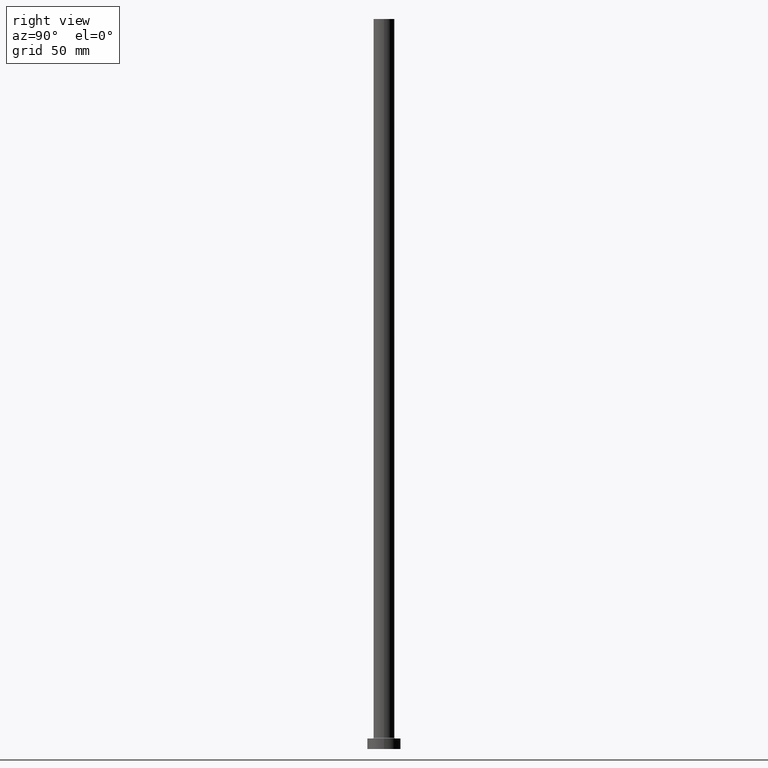
[diagram: clean part render]
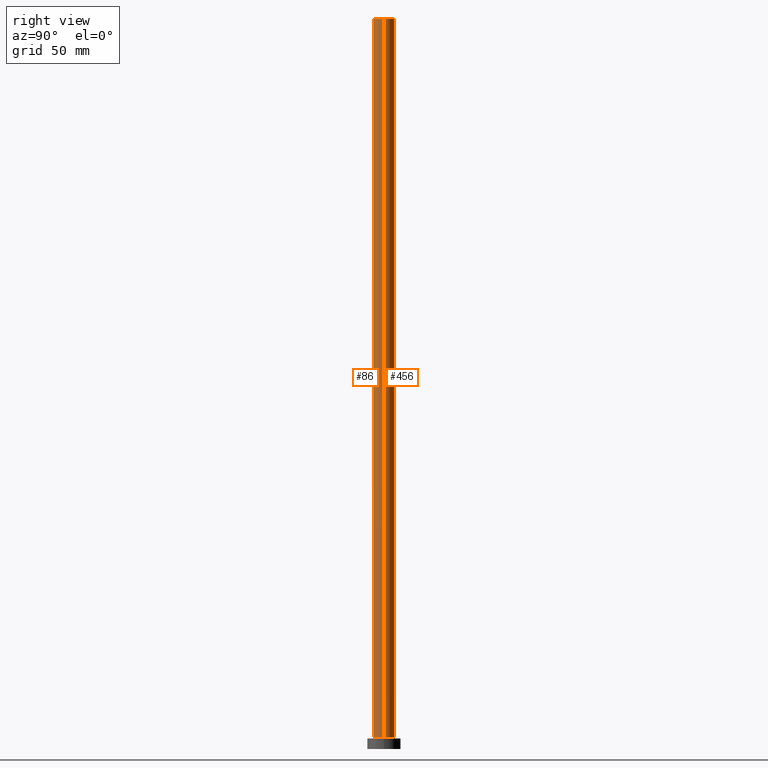
[diagram: same view with one multi-face feature highlighted, each face labeled with its STEP entity id]
A machine part, right view. The highlighted faces form ONE feature: a constant-radius fillet chain: 2 tangent blend faces with common blend radius 5 mm. The faces share edges in the B-rep.
Their STEP definitions:
[1] entity #86 (Cylinder):
#27 = CARTESIAN_POINT ( 'NONE',  ( -5.000000000000000000, 0.000000000000000000, 350.0000000000000000 ) ) ;
#31 = DIRECTION ( 'NONE',  ( 1.000000000000000000, 0.000000000000000000, 0.000000000000000000 ) ) ;
#38 = EDGE_LOOP ( 'NONE', ( #270, #414, #151, #224 ) ) ;
#45 = VERTEX_POINT ( 'NONE', #64 ) ;
#63 = VECTOR ( 'NONE', #243, 1000.000000000000000 ) ;
#64 = CARTESIAN_POINT ( 'NONE',  ( -5.000000000000000000, 0.000000000000000000, 5.500000000000005329 ) ) ;
#71 = AXIS2_PLACEMENT_3D ( 'NONE', #458, #418, #31 ) ;
#73 = CARTESIAN_POINT ( 'NONE',  ( 0.000000000000000000, 0.000000000000000000, 350.0000000000000000 ) ) ;
#82 = VERTEX_POINT ( 'NONE', #209 ) ;
#86 = ADVANCED_FACE ( 'NONE', ( #130 ), #313, .T. ) ;
#95 = LINE ( 'NONE', #27, #63 ) ;
#100 = CIRCLE ( 'NONE', #263, 5.000000000000000000 ) ;
#102 = EDGE_CURVE ( 'NONE', #45, #82, #280, .T. ) ;
#103 = EDGE_CURVE ( 'NONE', #381, #82, #246, .T. ) ;
#120 = EDGE_CURVE ( 'NONE', #262, #45, #95, .T. ) ;
#130 = FACE_OUTER_BOUND ( 'NONE', #38, .T. ) ;
#151 = ORIENTED_EDGE ( 'NONE', *, *, #120, .T. ) ;
#161 = DIRECTION ( 'NONE',  ( -0.000000000000000000, -0.000000000000000000, -1.000000000000000000 ) ) ;
#172 = CARTESIAN_POINT ( 'NONE',  ( 0.000000000000000000, 0.000000000000000000, 350.0000000000000000 ) ) ;
#209 = CARTESIAN_POINT ( 'NONE',  ( 5.000000000000000000, 6.123233995736766282E-16, 5.500000000000005329 ) ) ;
#224 = ORIENTED_EDGE ( 'NONE', *, *, #102, .T. ) ;
#243 = DIRECTION ( 'NONE',  ( -0.000000000000000000, -0.000000000000000000, -1.000000000000000000 ) ) ;
#246 = LINE ( 'NONE', #319, #401 ) ;
#262 = VERTEX_POINT ( 'NONE', #323 ) ;
#263 = AXIS2_PLACEMENT_3D ( 'NONE', #73, #435, #399 ) ;
#270 = ORIENTED_EDGE ( 'NONE', *, *, #103, .F. ) ;
#280 = CIRCLE ( 'NONE', #71, 5.000000000000000000 ) ;
#313 = CYLINDRICAL_SURFACE ( 'NONE', #330, 5.000000000000000000 ) ;
#319 = CARTESIAN_POINT ( 'NONE',  ( 5.000000000000000000, 6.123233995736766282E-16, 350.0000000000000000 ) ) ;
#323 = CARTESIAN_POINT ( 'NONE',  ( -5.000000000000000000, 0.000000000000000000, 350.0000000000000000 ) ) ;
#327 = CARTESIAN_POINT ( 'NONE',  ( 5.000000000000000000, 6.123233995736766282E-16, 350.0000000000000000 ) ) ;
#330 = AXIS2_PLACEMENT_3D ( 'NONE', #172, #161, #352 ) ;
#352 = DIRECTION ( 'NONE',  ( -1.000000000000000000, 0.000000000000000000, 0.000000000000000000 ) ) ;
#355 = EDGE_CURVE ( 'NONE', #262, #381, #100, .T. ) ;
#381 = VERTEX_POINT ( 'NONE', #327 ) ;
#399 = DIRECTION ( 'NONE',  ( 1.000000000000000000, 0.000000000000000000, 0.000000000000000000 ) ) ;
#401 = VECTOR ( 'NONE', #420, 1000.000000000000000 ) ;
#414 = ORIENTED_EDGE ( 'NONE', *, *, #355, .F. ) ;
#418 = DIRECTION ( 'NONE',  ( 0.000000000000000000, 0.000000000000000000, 1.000000000000000000 ) ) ;
#420 = DIRECTION ( 'NONE',  ( -0.000000000000000000, -0.000000000000000000, -1.000000000000000000 ) ) ;
#435 = DIRECTION ( 'NONE',  ( 0.000000000000000000, 0.000000000000000000, 1.000000000000000000 ) ) ;
#458 = CARTESIAN_POINT ( 'NONE',  ( 0.000000000000000000, 0.000000000000000000, 5.500000000000005329 ) ) ;
[2] entity #456 (Cylinder):
#4 = DIRECTION ( 'NONE',  ( 1.000000000000000000, 0.000000000000000000, 0.000000000000000000 ) ) ;
#23 = DIRECTION ( 'NONE',  ( 1.000000000000000000, 0.000000000000000000, 0.000000000000000000 ) ) ;
#27 = CARTESIAN_POINT ( 'NONE',  ( -5.000000000000000000, 0.000000000000000000, 350.0000000000000000 ) ) ;
#45 = VERTEX_POINT ( 'NONE', #64 ) ;
#49 = EDGE_LOOP ( 'NONE', ( #335, #227, #142, #304 ) ) ;
#63 = VECTOR ( 'NONE', #243, 1000.000000000000000 ) ;
#64 = CARTESIAN_POINT ( 'NONE',  ( -5.000000000000000000, 0.000000000000000000, 5.500000000000005329 ) ) ;
#77 = AXIS2_PLACEMENT_3D ( 'NONE', #112, #223, #339 ) ;
#79 = CYLINDRICAL_SURFACE ( 'NONE', #77, 5.000000000000000000 ) ;
#82 = VERTEX_POINT ( 'NONE', #209 ) ;
#95 = LINE ( 'NONE', #27, #63 ) ;
#103 = EDGE_CURVE ( 'NONE', #381, #82, #246, .T. ) ;
#105 = CARTESIAN_POINT ( 'NONE',  ( 0.000000000000000000, 0.000000000000000000, 350.0000000000000000 ) ) ;
#112 = CARTESIAN_POINT ( 'NONE',  ( 0.000000000000000000, 0.000000000000000000, 350.0000000000000000 ) ) ;
#120 = EDGE_CURVE ( 'NONE', #262, #45, #95, .T. ) ;
#140 = CIRCLE ( 'NONE', #257, 5.000000000000000000 ) ;
#142 = ORIENTED_EDGE ( 'NONE', *, *, #176, .T. ) ;
#176 = EDGE_CURVE ( 'NONE', #82, #45, #140, .T. ) ;
#197 = CIRCLE ( 'NONE', #356, 5.000000000000000000 ) ;
#209 = CARTESIAN_POINT ( 'NONE',  ( 5.000000000000000000, 6.123233995736766282E-16, 5.500000000000005329 ) ) ;
#223 = DIRECTION ( 'NONE',  ( -0.000000000000000000, -0.000000000000000000, -1.000000000000000000 ) ) ;
#227 = ORIENTED_EDGE ( 'NONE', *, *, #103, .T. ) ;
#236 = CARTESIAN_POINT ( 'NONE',  ( 0.000000000000000000, 0.000000000000000000, 5.500000000000005329 ) ) ;
#243 = DIRECTION ( 'NONE',  ( -0.000000000000000000, -0.000000000000000000, -1.000000000000000000 ) ) ;
#246 = LINE ( 'NONE', #319, #401 ) ;
#257 = AXIS2_PLACEMENT_3D ( 'NONE', #236, #382, #23 ) ;
#262 = VERTEX_POINT ( 'NONE', #323 ) ;
#304 = ORIENTED_EDGE ( 'NONE', *, *, #120, .F. ) ;
#319 = CARTESIAN_POINT ( 'NONE',  ( 5.000000000000000000, 6.123233995736766282E-16, 350.0000000000000000 ) ) ;
#320 = EDGE_CURVE ( 'NONE', #381, #262, #197, .T. ) ;
#323 = CARTESIAN_POINT ( 'NONE',  ( -5.000000000000000000, 0.000000000000000000, 350.0000000000000000 ) ) ;
#327 = CARTESIAN_POINT ( 'NONE',  ( 5.000000000000000000, 6.123233995736766282E-16, 350.0000000000000000 ) ) ;
#335 = ORIENTED_EDGE ( 'NONE', *, *, #320, .F. ) ;
#339 = DIRECTION ( 'NONE',  ( -1.000000000000000000, 0.000000000000000000, 0.000000000000000000 ) ) ;
#356 = AXIS2_PLACEMENT_3D ( 'NONE', #105, #402, #4 ) ;
#381 = VERTEX_POINT ( 'NONE', #327 ) ;
#382 = DIRECTION ( 'NONE',  ( 0.000000000000000000, 0.000000000000000000, 1.000000000000000000 ) ) ;
#401 = VECTOR ( 'NONE', #420, 1000.000000000000000 ) ;
#402 = DIRECTION ( 'NONE',  ( 0.000000000000000000, 0.000000000000000000, 1.000000000000000000 ) ) ;
#408 = FACE_OUTER_BOUND ( 'NONE', #49, .T. ) ;
#420 = DIRECTION ( 'NONE',  ( -0.000000000000000000, -0.000000000000000000, -1.000000000000000000 ) ) ;
#456 = ADVANCED_FACE ( 'NONE', ( #408 ), #79, .T. ) ;